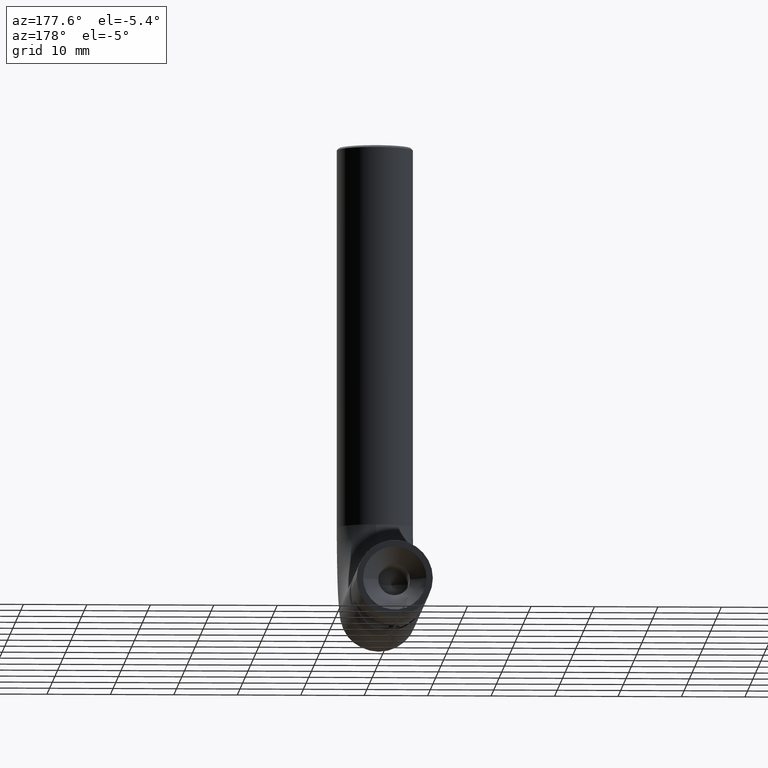
[diagram: clean part render]
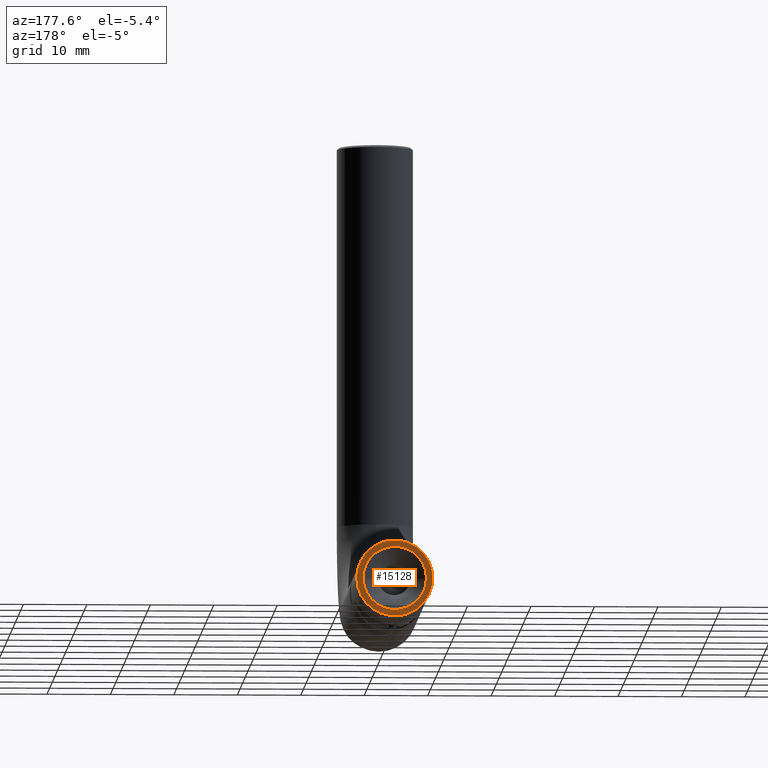
[diagram: same view with one face highlighted and labeled with its STEP entity id]
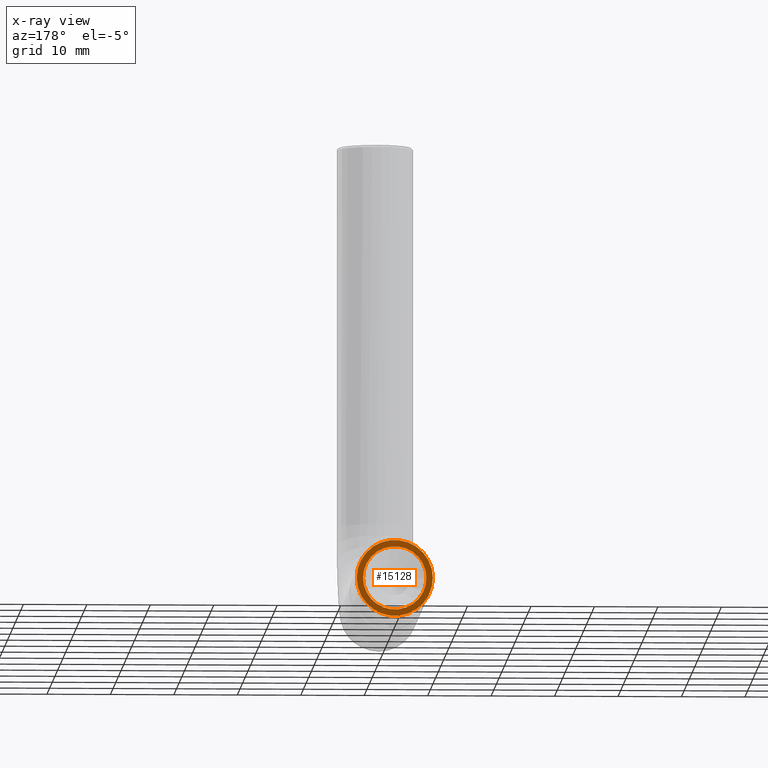
[diagram: x-ray of the same camera — body ghosted, the highlighted face saturated]
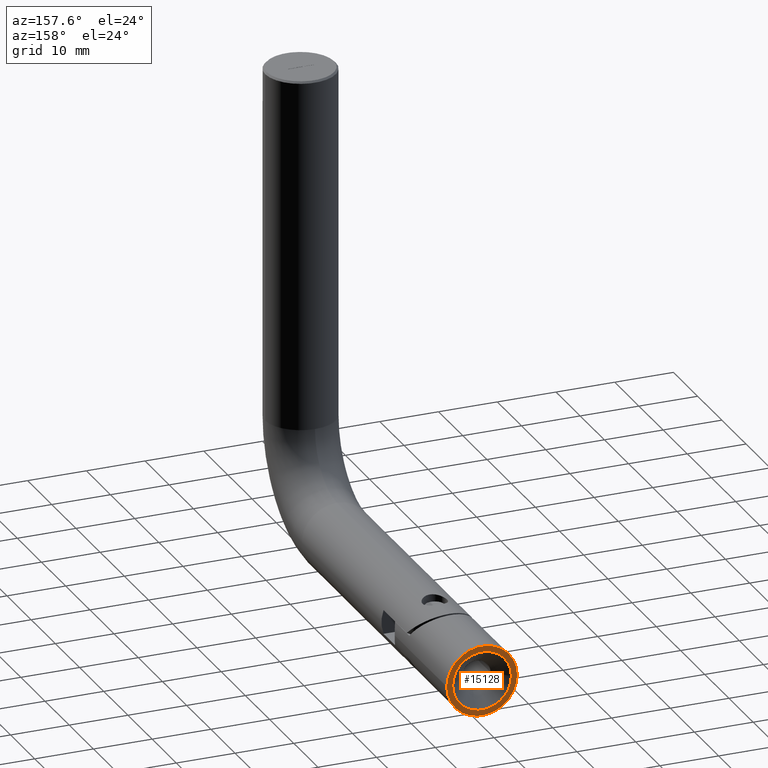
[diagram: same view with one face highlighted and labeled with its STEP entity id]
A machine part, auxiliary view. The second image highlights one B-rep face of the part: STEP entity #15128.
The next image is the same camera in x-ray: the body ghosted, the highlighted face saturated — about 0% of this face is hidden behind the body in this view.
A second angle (auxiliary view) of the same face is appended — the face is thin or edge-on in the first view.
In plain terms, the highlighted planar face has unit normal (-0, 1, 0).
Its self-contained STEP definition (entity closure, byte-faithful):
#258 = DIRECTION ( 'NONE',  ( -6.286235338479924687E-31, 1.000000000000000000, 2.465190328815653134E-32 ) ) ;
#1142 = AXIS2_PLACEMENT_3D ( 'NONE', #17283, #14789, #4014 ) ;
#1616 = DIRECTION ( 'NONE',  ( 1.528418003865706344E-30, -2.465190328815653134E-32, 1.000000000000000000 ) ) ;
#1655 = CARTESIAN_POINT ( 'NONE',  ( 7.347880794884302160E-16, 12.87000000000002764, 6.000000000000000888 ) ) ;
#2341 = CARTESIAN_POINT ( 'NONE',  ( 0.000000000000000000, 12.87000000000002764, 3.081487911019577365E-30 ) ) ;
#2585 = DIRECTION ( 'NONE',  ( 1.528418003865706344E-30, 0.000000000000000000, 1.000000000000000000 ) ) ;
#3221 = EDGE_CURVE ( 'NONE', #12386, #10604, #9213, .T. ) ;
#3635 = VERTEX_POINT ( 'NONE', #1655 ) ;
#3980 = EDGE_CURVE ( 'NONE', #13682, #3635, #4355, .T. ) ;
#4014 = DIRECTION ( 'NONE',  ( 1.528418003865706344E-30, 0.000000000000000000, 1.000000000000000000 ) ) ;
#4355 = CIRCLE ( 'NONE', #12137, 6.000000000000016875 ) ;
#4744 = CARTESIAN_POINT ( 'NONE',  ( -2.150426531879441036E-30, 12.87000000000002764, -6.000000000000000888 ) ) ;
#5094 = ORIENTED_EDGE ( 'NONE', *, *, #5599, .T. ) ;
#5599 = EDGE_CURVE ( 'NONE', #3635, #13682, #6839, .T. ) ;
#5983 = FACE_BOUND ( 'NONE', #14652, .T. ) ;
#6839 = CIRCLE ( 'NONE', #8293, 6.000000000000016875 ) ;
#6957 = PLANE ( 'NONE',  #11757 ) ;
#7211 = CARTESIAN_POINT ( 'NONE',  ( 7.642090019328551865E-30, 12.87000000000002764, 5.000000000000013323 ) ) ;
#7847 = EDGE_LOOP ( 'NONE', ( #17198, #5094 ) ) ;
#8293 = AXIS2_PLACEMENT_3D ( 'NONE', #10185, #8582, #11493 ) ;
#8325 = CARTESIAN_POINT ( 'NONE',  ( 0.000000000000000000, 12.87000000000002764, 3.081487911019577365E-30 ) ) ;
#8498 = CARTESIAN_POINT ( 'NONE',  ( 6.123233995736721909E-16, 12.87000000000002764, -5.000000000000013323 ) ) ;
#8582 = DIRECTION ( 'NONE',  ( -6.286235338479925563E-31, 1.000000000000000000, 1.503209982180670017E-46 ) ) ;
#9213 = CIRCLE ( 'NONE', #15491, 5.000000000000013323 ) ;
#9337 = DIRECTION ( 'NONE',  ( -6.286235338479925563E-31, 1.000000000000000000, 1.503209982180670017E-46 ) ) ;
#10185 = CARTESIAN_POINT ( 'NONE',  ( 0.000000000000000000, 12.87000000000002764, 3.081487911019577365E-30 ) ) ;
#10604 = VERTEX_POINT ( 'NONE', #7211 ) ;
#11493 = DIRECTION ( 'NONE',  ( 1.528418003865706344E-30, 0.000000000000000000, 1.000000000000000000 ) ) ;
#11757 = AXIS2_PLACEMENT_3D ( 'NONE', #8325, #258, #1616 ) ;
#11845 = CARTESIAN_POINT ( 'NONE',  ( 0.000000000000000000, 12.87000000000002764, 3.081487911019577365E-30 ) ) ;
#12137 = AXIS2_PLACEMENT_3D ( 'NONE', #11845, #9337, #2585 ) ;
#12386 = VERTEX_POINT ( 'NONE', #8498 ) ;
#13181 = DIRECTION ( 'NONE',  ( -6.286235338479925563E-31, 1.000000000000000000, 1.503209982180670017E-46 ) ) ;
#13564 = ORIENTED_EDGE ( 'NONE', *, *, #16448, .F. ) ;
#13682 = VERTEX_POINT ( 'NONE', #4744 ) ;
#14409 = CIRCLE ( 'NONE', #1142, 5.000000000000013323 ) ;
#14538 = DIRECTION ( 'NONE',  ( 1.528418003865706344E-30, 0.000000000000000000, 1.000000000000000000 ) ) ;
#14652 = EDGE_LOOP ( 'NONE', ( #13564, #15384 ) ) ;
#14789 = DIRECTION ( 'NONE',  ( -6.286235338479925563E-31, 1.000000000000000000, 1.503209982180670017E-46 ) ) ;
#15128 = ADVANCED_FACE ( 'NONE', ( #5983, #16106 ), #6957, .T. ) ;
#15384 = ORIENTED_EDGE ( 'NONE', *, *, #3221, .F. ) ;
#15491 = AXIS2_PLACEMENT_3D ( 'NONE', #2341, #13181, #14538 ) ;
#16106 = FACE_OUTER_BOUND ( 'NONE', #7847, .T. ) ;
#16448 = EDGE_CURVE ( 'NONE', #10604, #12386, #14409, .T. ) ;
#17198 = ORIENTED_EDGE ( 'NONE', *, *, #3980, .T. ) ;
#17283 = CARTESIAN_POINT ( 'NONE',  ( 0.000000000000000000, 12.87000000000002764, 3.081487911019577365E-30 ) ) ;